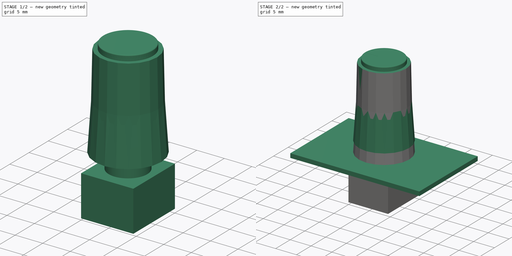
[diagram: build sequence overview — one tinted view per stage of 2, left to right]
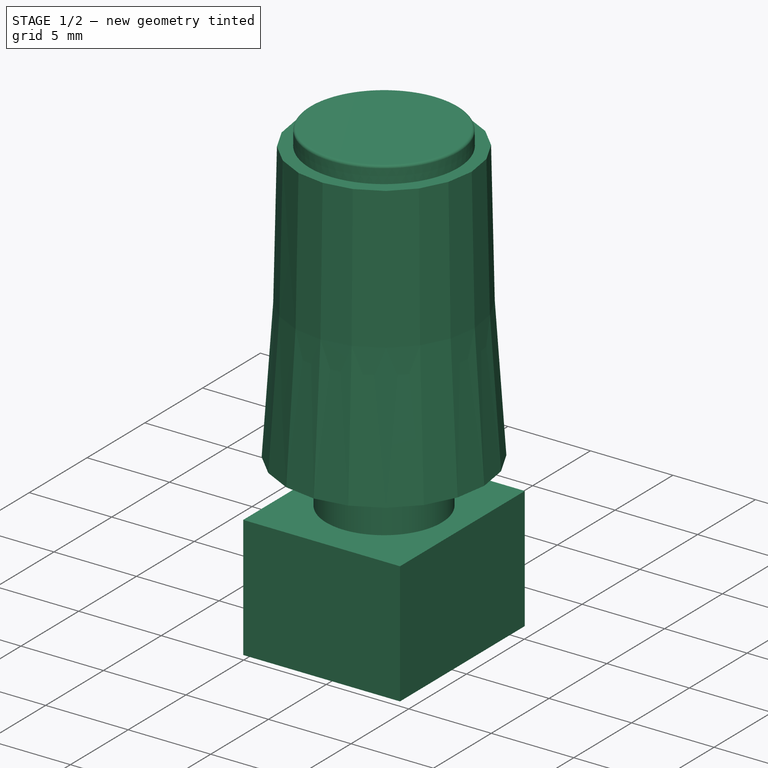
[diagram: stage 1 of 2 — iso view after this stage's code; geometry added in this stage tinted green]
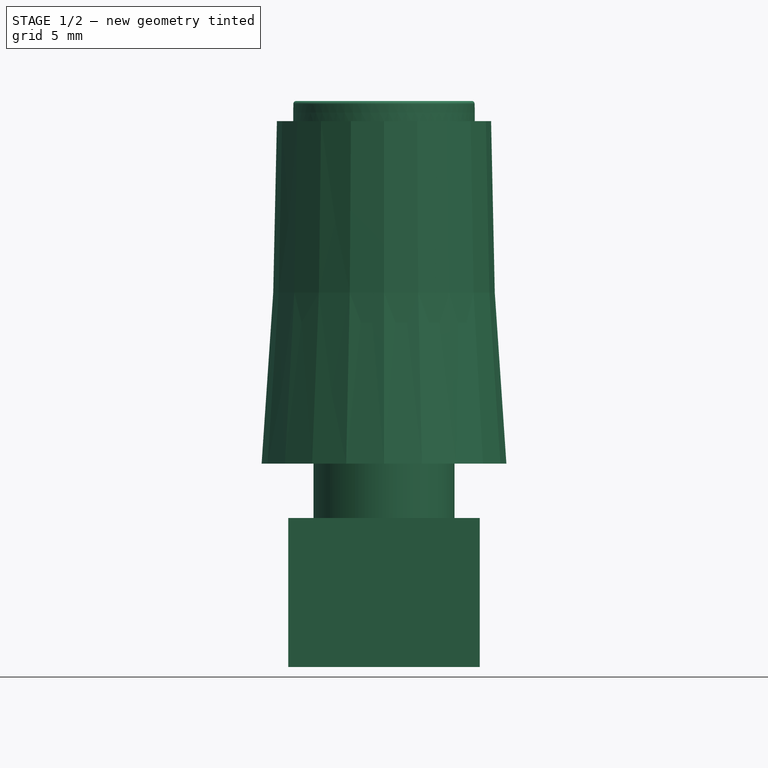
[diagram: stage 1 of 2 — front view after this stage's code; geometry added in this stage tinted green]
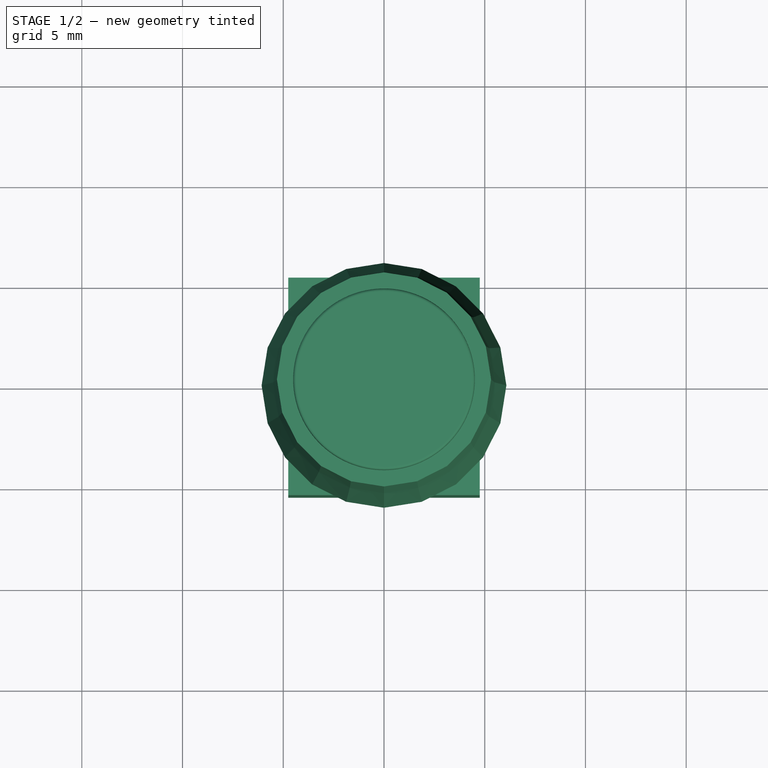
[diagram: stage 1 of 2 — top view after this stage's code; geometry added in this stage tinted green]
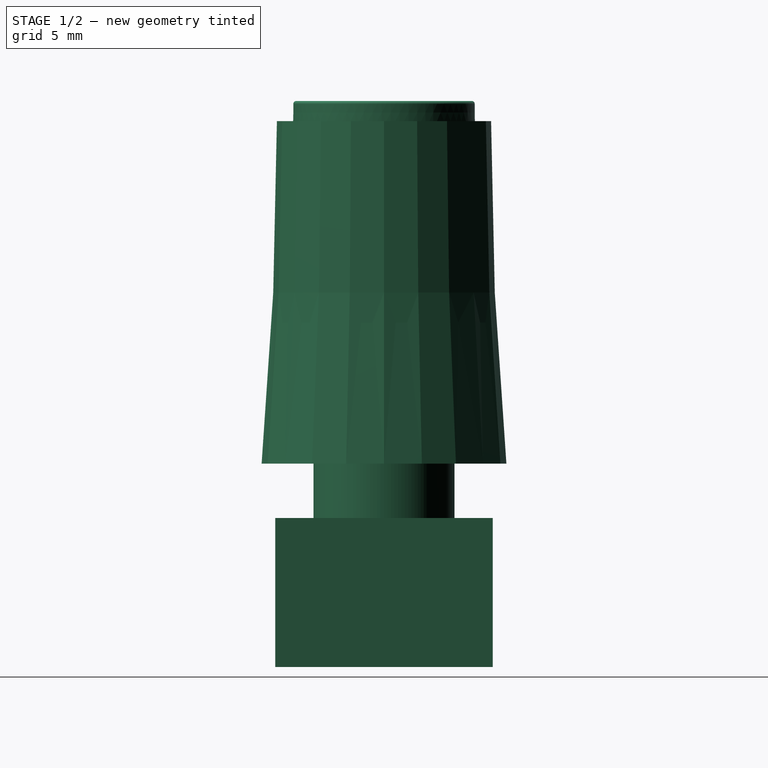
[diagram: stage 1 of 2 — right view after this stage's code; geometry added in this stage tinted green]
FCSTD DOCUMENT  (FreeCAD 0.21R33668 +26 (Git))
Label: ASSY
License: All rights reserved
LicenseURL: https://en.wikipedia.org/wiki/All_rights_reserved
objects: App::FeaturePython×4, Part::FeaturePython×3, Sketcher::SketchObject×1, PartDesign::Pad×1, PartDesign::Body×1
note: 7 computed .brp shape members not serialized (recipe doc carries the construction recipe); baked Part::Feature solids carry a one-line shape summary decoded from their .brp

FEATURE [Part::FeaturePython] b_pcba_pot_RK0952N_001_  label="pcba-pot-RK0952N_001"  # a2plus imported part (geometry in sourceFile) (typed FeaturePython)
  a2p_Version = 0.4.61
  fixedPosition = true
  objectType = a2pPart
  sourceFile = .\pcba-pot-RK0952N.FCStd
  subassemblyImport = false
  timeLastImport = 1.71689e+09
  updateColors = true
FEATURE [App::FeaturePython] axisCoincident_001  label="axisCoincident_001__pcba-pot-RK0952N_001"  # a2plus constraint (typed FeaturePython)
  Object1 = b_PLASTIC_KNOB_POT_001_
  Object2 = b_pcba_pot_RK0952N_001_
  ParentTreeObject = -> b_PLASTIC_KNOB_POT_001_
  SubElement1 = Edge375
  SubElement2 = Edge12
  Suppressed = false
  Type = axial
  directionConstraint = 1
  lockRotation = false
FEATURE [App::FeaturePython] axisCoincident_001_mirror  label="axisCoincident_001__PLASTIC-KNOB-POT_001"  # a2plus constraint (typed FeaturePython)
  Object1 = b_PLASTIC_KNOB_POT_001_
  Object2 = b_pcba_pot_RK0952N_001_
  ParentTreeObject = -> b_pcba_pot_RK0952N_001_
  SubElement1 = Edge375
  SubElement2 = Edge12
  Suppressed = false
  Type = axial
  directionConstraint = 1
  lockRotation = false
FEATURE [Part::FeaturePython] b_PLASTIC_KNOB_POT_m_xc3_xa1solata_001_  label="PLASTIC-KNOB-POT másolata_001"  # a2plus imported part (geometry in sourceFile) (typed FeaturePython)
  Placement = pos=(0,0,2.7) rot=(0,0,1;1.5708rad)
  a2p_Version = 0.4.61
  fixedPosition = false
  objectType = a2pPart
  sourceFile = .\PLASTIC-KNOB-POT másolata.FCStd
  subassemblyImport = false
  timeLastImport = 1.71689e+09
  updateColors = true
FEATURE [App::FeaturePython] planeCoincident_001  label="planeCoincident_001__pcba-pot-RK0952N_001"  # a2plus constraint (typed FeaturePython)
  Object1 = b_PLASTIC_KNOB_POT_m_xc3_xa1solata_001_
  Object2 = b_pcba_pot_RK0952N_001_
  ParentTreeObject = -> b_PLASTIC_KNOB_POT_m_xc3_xa1solata_001_
  SubElement1 = Face104
  SubElement2 = Face6
  Suppressed = false
  Type = plane
  directionConstraint = 1
  offset = 0
FEATURE [App::FeaturePython] planeCoincident_001_mirror  label="planeCoincident_001__PLASTIC-KNOB-POT másolata_001"  # a2plus constraint (typed FeaturePython)
  Object1 = b_PLASTIC_KNOB_POT_m_xc3_xa1solata_001_
  Object2 = b_pcba_pot_RK0952N_001_
  ParentTreeObject = -> b_pcba_pot_RK0952N_001_
  SubElement1 = Face104
  SubElement2 = Face6
  Suppressed = false
  Type = plane
  directionConstraint = 1
  offset = 0
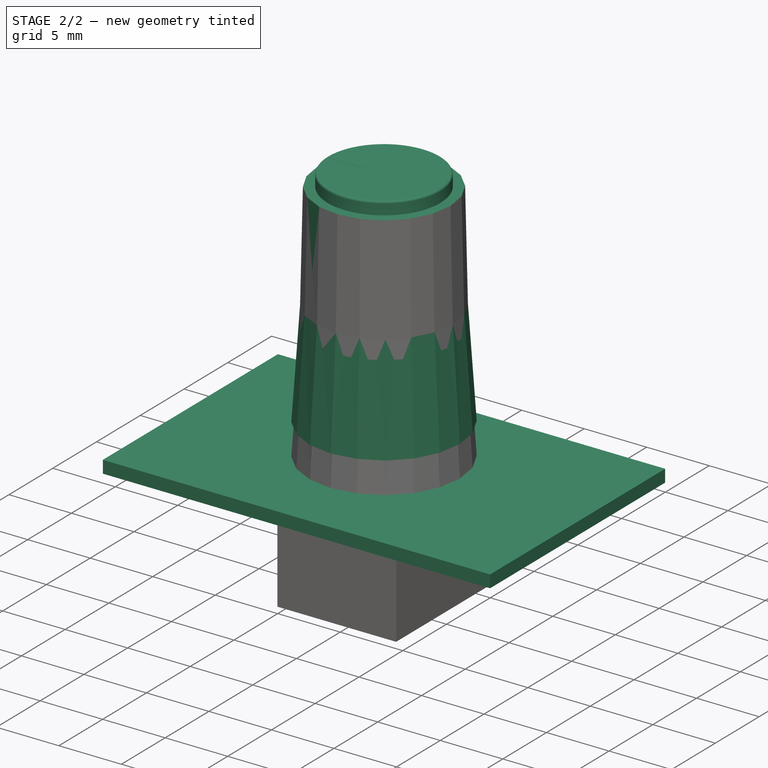
[diagram: stage 2 of 2 — iso view after this stage's code; geometry added in this stage tinted green]
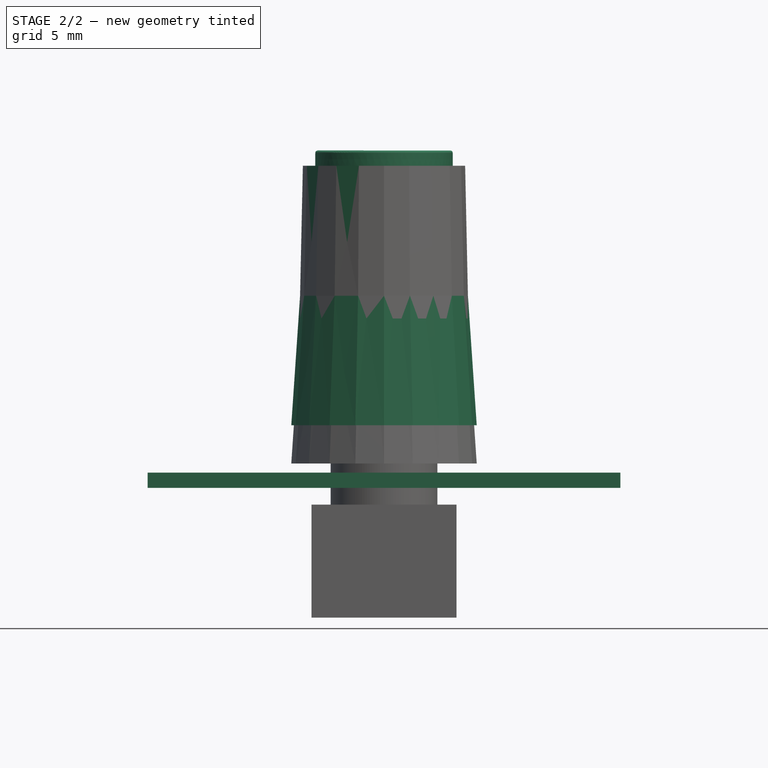
[diagram: stage 2 of 2 — front view after this stage's code; geometry added in this stage tinted green]
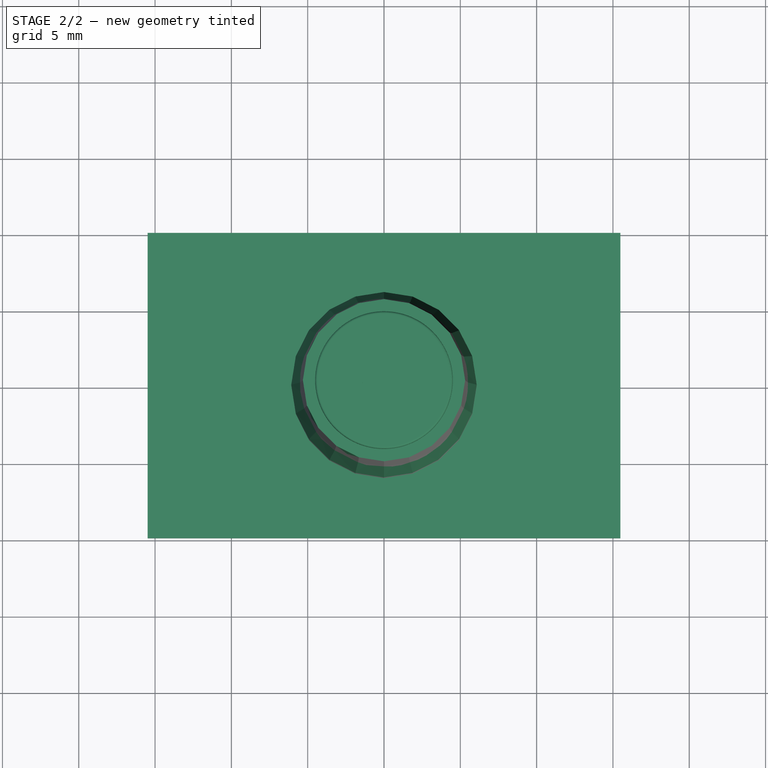
[diagram: stage 2 of 2 — top view after this stage's code; geometry added in this stage tinted green]
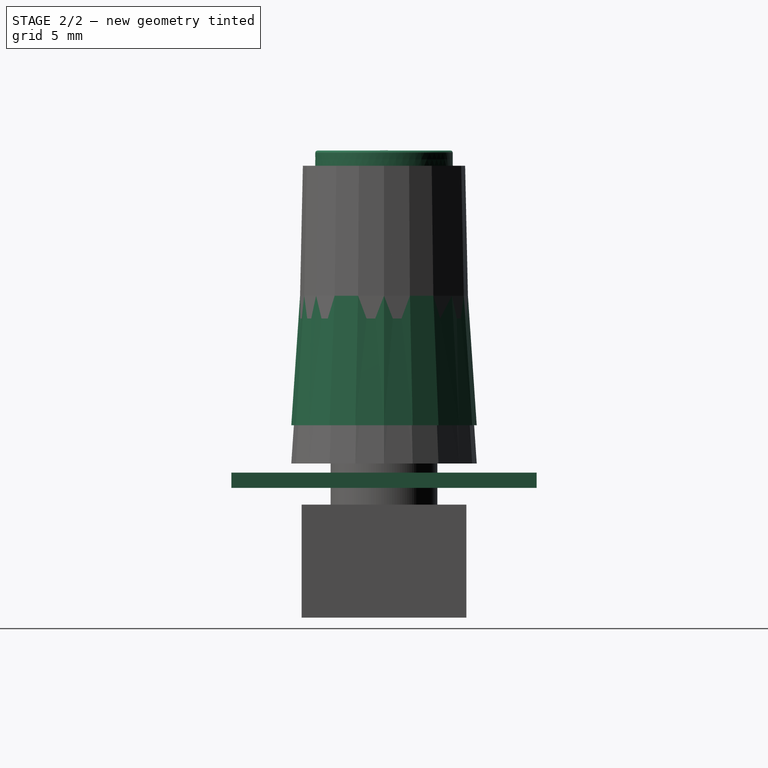
[diagram: stage 2 of 2 — right view after this stage's code; geometry added in this stage tinted green]
FEATURE [Sketcher::SketchObject] Sketch
  FullyConstrained = false
  MapMode = 5
  Placement = pos=(0,0,0) rot=(1,0,0;1.5708rad)
  Support = -> [XZ_Plane]
  sketch-geometry (6):
    g0: LineSegment StartX=-15.4871 StartY=2.1 StartZ=0 EndX=-15.4871 EndY=1.1 EndZ=0
    g1: LineSegment StartX=-15.4871 StartY=1.1 StartZ=0 EndX=15.4871 EndY=1.1 EndZ=0
    g2: LineSegment StartX=15.4871 StartY=1.1 StartZ=0 EndX=15.4871 EndY=2.1 EndZ=0
    g3: LineSegment StartX=15.4871 StartY=2.1 StartZ=0 EndX=-15.4871 EndY=2.1 EndZ=0
    g4: GeomPoint X=0 Y=1.6 Z=0
    g5: GeomPoint X=0 Y=-7.4 Z=0
  constraints (14):
    c: Coincident(g0,g1)
    c: Coincident(g1,g2)
    c: Coincident(g2,g3)
    c: Coincident(g3,g0)
    c: Horizontal(g1)
    c: Horizontal(g3)
    c: Vertical(g0)
    c: Vertical(g2)
    c: Symmetric(g1,g0,g4)
    c: PointOnObject(g4,g-2)
    c: DistanceY(g2,g2) = 1
    c: PointOnObject(g5,g-2)
    c: DistanceY(g5) = -7.4
    c: DistanceY(g5,g0) = 8.5
FEATURE [PartDesign::Pad] Pad
  Direction = (0,-1,-2e-16)
  Length = 20
  Length2 = 10
  Midplane = true
  Placement = pos=(0,0,0) rot=(1,0,0;1.5708rad)
  Profile = -> Sketch
  ReferenceAxis = -> Sketch [N_Axis]
  Type = 0
FEATURE [PartDesign::Body] Body
  Group = -> [Sketch,Pad]
  Origin = -> Origin
  Tip = -> Pad
FEATURE [Part::FeaturePython] b_PLASTIC_KNOB_POT_001_  label="PLASTIC-KNOB-POT_001"  # a2plus imported part (geometry in sourceFile) (typed FeaturePython)
  Placement = pos=(0,0,5.2) rot=(0,0,1;1.5708rad)
  a2p_Version = 0.4.61
  fixedPosition = false
  objectType = a2pPart
  sourceFile = .\PLASTIC-KNOB-POT.FCStd
  subassemblyImport = false
  timeLastImport = 1.70438e+09
  updateColors = true
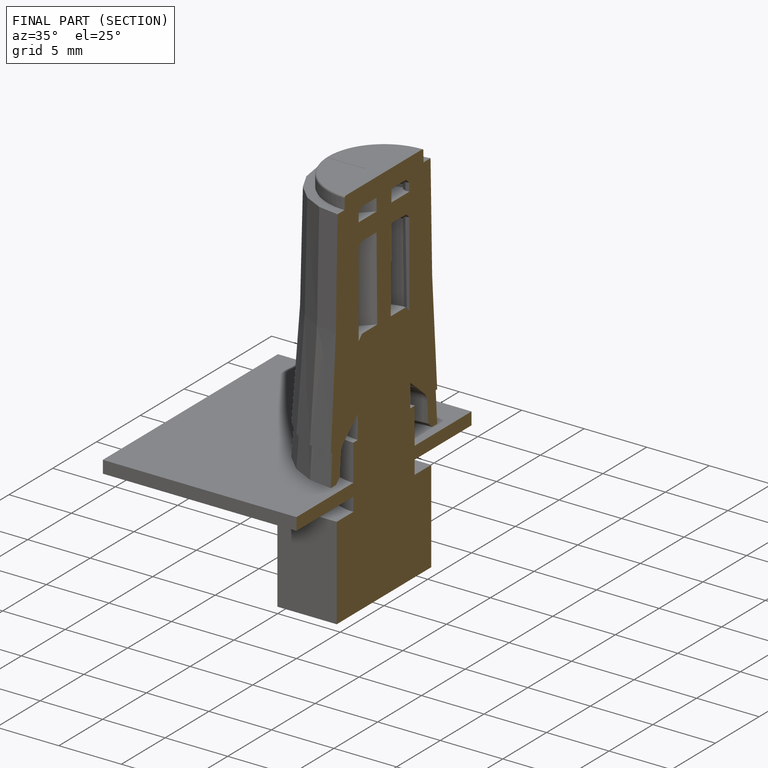
[diagram: finished part — half-section view (interior)]
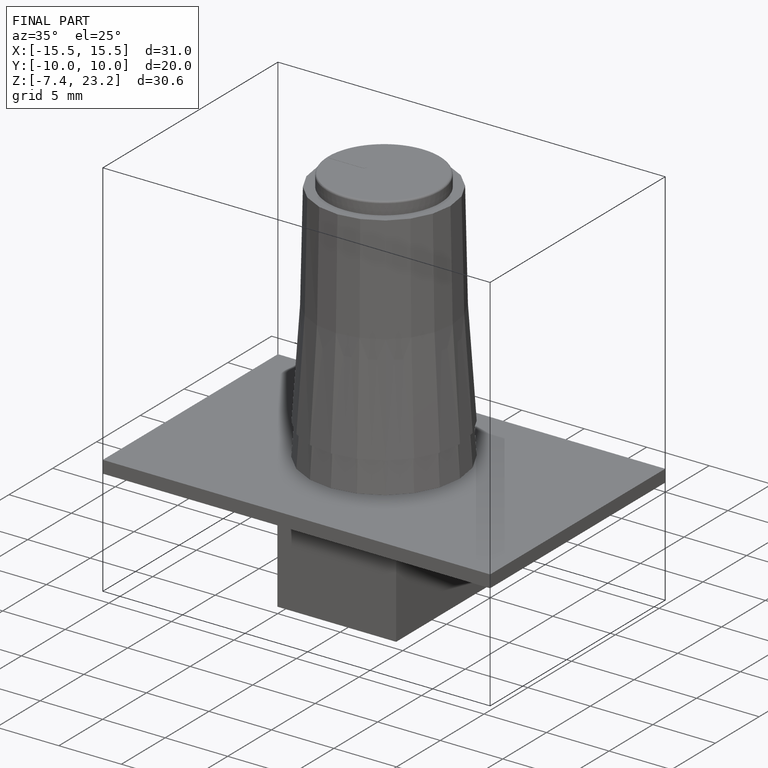
[diagram: finished part — iso view with bounding-box wireframe]
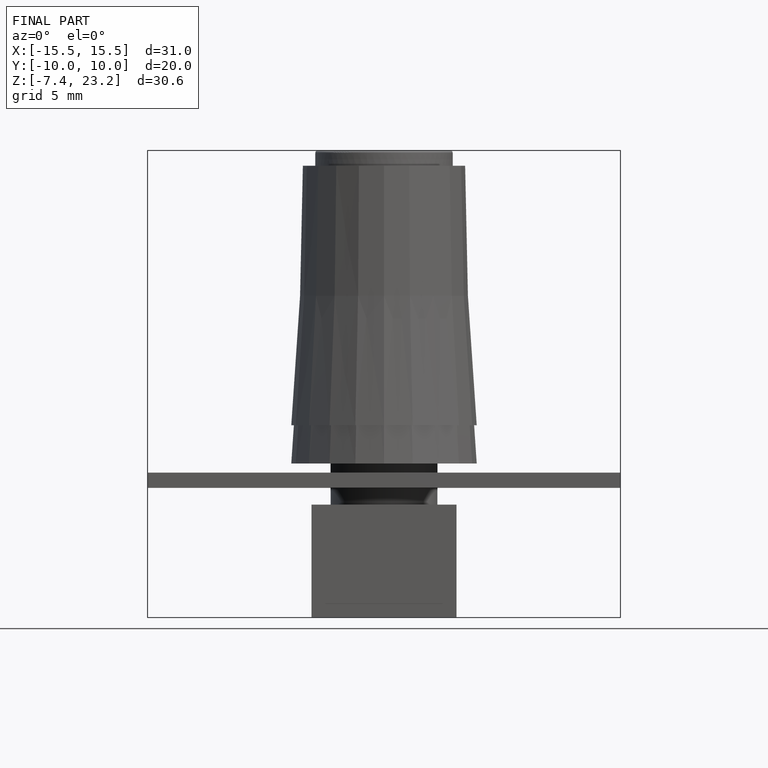
[diagram: finished part — front view with bounding-box wireframe]
